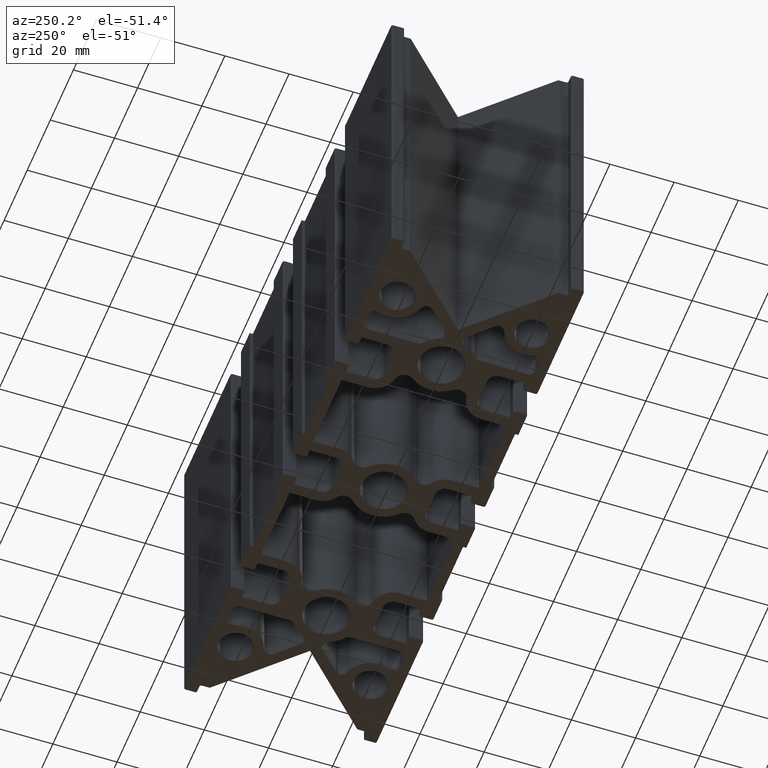
[diagram: clean part render]
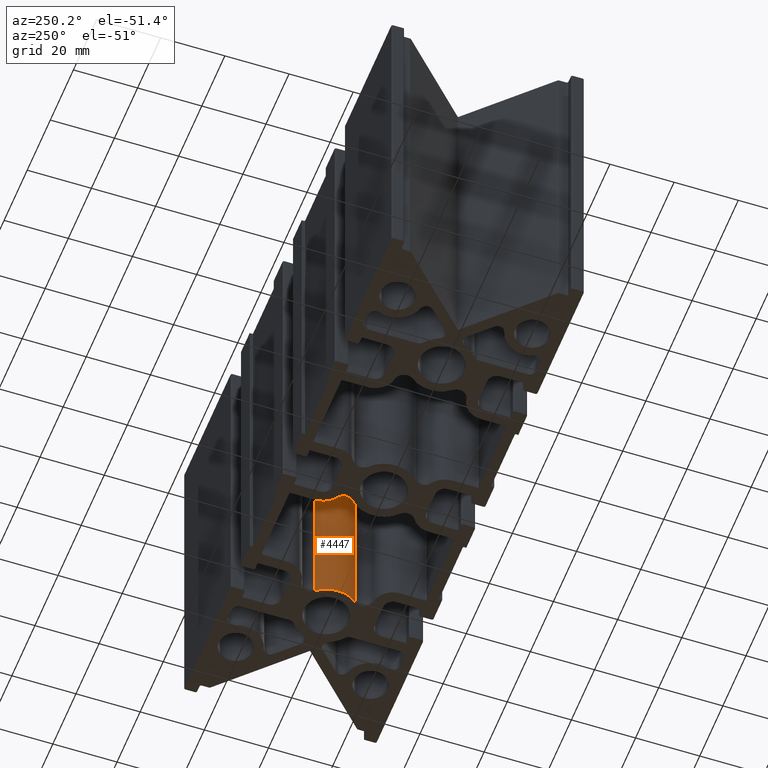
[diagram: same view with one face highlighted and labeled with its STEP entity id]
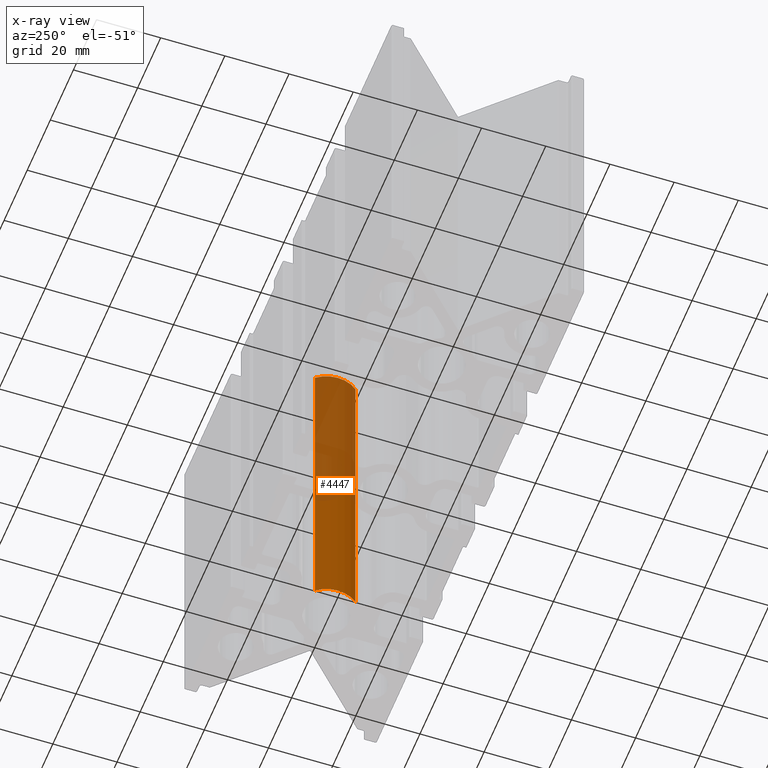
[diagram: x-ray of the same camera — body ghosted, the highlighted face saturated]
A machine part, auxiliary view. The second image highlights one B-rep face of the part: STEP entity #4447.
The next image is the same camera in x-ray: the body ghosted, the highlighted face saturated — about 56% of this face is hidden behind the body in this view.
In plain terms, the highlighted cylindrical surface (edge-blend (fillet) strip) has radius 10 mm, axis along (0, 0, 1).
Its self-contained STEP definition (entity closure, byte-faithful):
#189=FACE_OUTER_BOUND('',#433,.T.);
#433=EDGE_LOOP('',(#3295,#3296,#3297,#3298));
#668=LINE('',#6651,#1109);
#794=LINE('',#7152,#1235);
#1109=VECTOR('',#5259,10.);
#1235=VECTOR('',#5677,10.);
#1641=CIRCLE('',#4803,10.);
#1669=CIRCLE('',#4852,10.);
#1803=VERTEX_POINT('',#6648);
#1804=VERTEX_POINT('',#6650);
#1995=VERTEX_POINT('',#7034);
#2033=VERTEX_POINT('',#7150);
#2279=EDGE_CURVE('',#1804,#1803,#668,.T.);
#2471=EDGE_CURVE('',#1804,#1995,#1641,.T.);
#2530=EDGE_CURVE('',#1995,#2033,#794,.T.);
#2531=EDGE_CURVE('',#2033,#1803,#1669,.T.);
#3295=ORIENTED_EDGE('',*,*,#2531,.F.);
#3296=ORIENTED_EDGE('',*,*,#2530,.F.);
#3297=ORIENTED_EDGE('',*,*,#2471,.F.);
#3298=ORIENTED_EDGE('',*,*,#2279,.T.);
#4311=CYLINDRICAL_SURFACE('',#4851,10.);
#4447=ADVANCED_FACE('',(#189),#4311,.T.);
#4803=AXIS2_PLACEMENT_3D('',#7035,#5550,#5551);
#4851=AXIS2_PLACEMENT_3D('',#7153,#5678,#5679);
#4852=AXIS2_PLACEMENT_3D('',#7154,#5680,#5681);
#5259=DIRECTION('',(0.,0.,-1.));
#5550=DIRECTION('center_axis',(0.,0.,1.));
#5551=DIRECTION('ref_axis',(-0.77627068126935,0.630399737786763,0.));
#5677=DIRECTION('',(0.,0.,-1.));
#5678=DIRECTION('center_axis',(0.,0.,1.));
#5679=DIRECTION('ref_axis',(-0.776270681269347,-0.630399737786767,0.));
#5680=DIRECTION('center_axis',(0.,0.,-1.));
#5681=DIRECTION('ref_axis',(-0.77627068126935,0.630399737786763,0.));
#6648=CARTESIAN_POINT('',(42.2372931873065,6.30399737786773,0.));
#6650=CARTESIAN_POINT('',(42.2372931873065,6.30399737786773,100.));
#6651=CARTESIAN_POINT('',(42.2372931873065,6.30399737786773,100.));
#7034=CARTESIAN_POINT('',(42.2372931873066,-6.30399737786755,100.));
#7035=CARTESIAN_POINT('Origin',(50.,9.69678882644199E-14,100.));
#7150=CARTESIAN_POINT('',(42.2372931873066,-6.30399737786755,0.));
#7152=CARTESIAN_POINT('',(42.2372931873066,-6.30399737786755,100.));
#7153=CARTESIAN_POINT('Origin',(50.,1.21115239050017E-13,100.));
#7154=CARTESIAN_POINT('Origin',(50.,9.69678882644199E-14,0.));